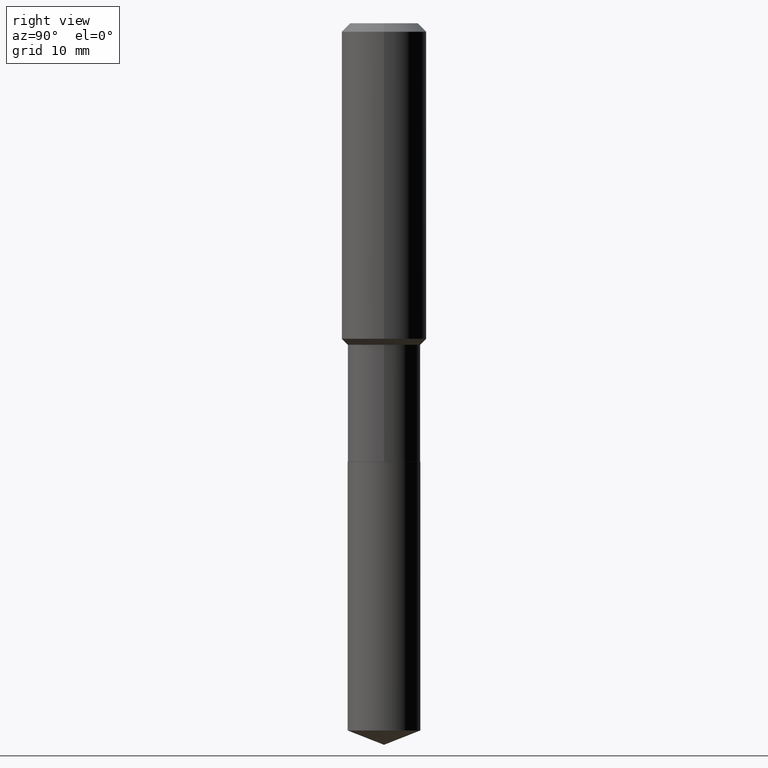
[diagram: clean part render]
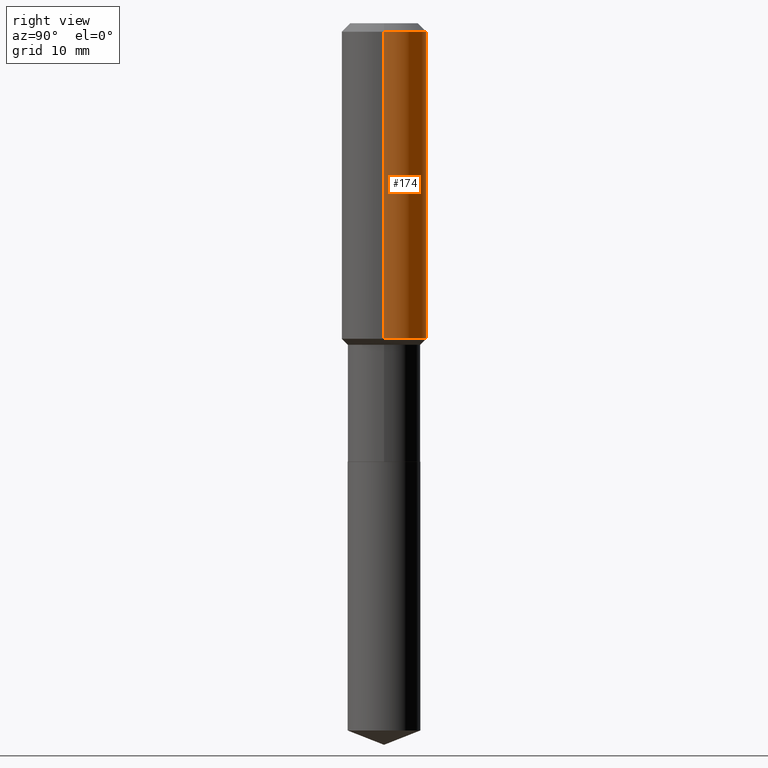
[diagram: same view with one face highlighted and labeled with its STEP entity id]
A machine part, right view. The second image highlights one B-rep face of the part: STEP entity #174.
In plain terms, the highlighted cylindrical surface (partial cylindrical patch) has radius 5.9995 mm, axis along (-0, 0, 1).
Its self-contained STEP definition (entity closure, byte-faithful):
#11 = DIRECTION ( 'NONE',  ( -2.445468806185136597E-29, 3.491481338843145583E-15, 1.000000000000000000 ) ) ;
#29 = CARTESIAN_POINT ( 'NONE',  ( 0.2362000000000001043, -1.649375784469496920E-15, 1.151752954443000508E-29 ) ) ;
#40 = CIRCLE ( 'NONE', #289, 0.2361999999999999933 ) ;
#43 = VERTEX_POINT ( 'NONE', #134 ) ;
#52 = ORIENTED_EDGE ( 'NONE', *, *, #222, .F. ) ;
#68 = DIRECTION ( 'NONE',  ( -2.445468806185136877E-29, 3.491481338843145188E-15, 1.000000000000000000 ) ) ;
#75 = CARTESIAN_POINT ( 'NONE',  ( -0.2362000000000001043, 1.678301941865357380E-15, -1.161852468318209317E-29 ) ) ;
#84 = DIRECTION ( 'NONE',  ( 1.000000000000000000, -6.982962677686266711E-15, 0.000000000000000000 ) ) ;
#92 = AXIS2_PLACEMENT_3D ( 'NONE', #257, #11, #84 ) ;
#115 = ORIENTED_EDGE ( 'NONE', *, *, #182, .F. ) ;
#131 = AXIS2_PLACEMENT_3D ( 'NONE', #320, #282, #445 ) ;
#134 = CARTESIAN_POINT ( 'NONE',  ( 0.2362000000000002153, -7.780591589545004150E-15, -1.756049999999999889 ) ) ;
#143 = LINE ( 'NONE', #75, #162 ) ;
#153 = VERTEX_POINT ( 'NONE', #317 ) ;
#162 = VECTOR ( 'NONE', #68, 39.37007874015748143 ) ;
#174 = ADVANCED_FACE ( 'NONE', ( #270 ), #433, .T. ) ;
#178 = CARTESIAN_POINT ( 'NONE',  ( 1.155239464041865506E-30, -1.649375784469511859E-16, -0.04724000000000028177 ) ) ;
#182 = EDGE_CURVE ( 'NONE', #43, #224, #212, .T. ) ;
#198 = ORIENTED_EDGE ( 'NONE', *, *, #359, .T. ) ;
#212 = LINE ( 'NONE', #29, #427 ) ;
#222 = EDGE_CURVE ( 'NONE', #224, #262, #40, .T. ) ;
#224 = VERTEX_POINT ( 'NONE', #368 ) ;
#240 = DIRECTION ( 'NONE',  ( -2.445468806185136877E-29, 3.491481338843145188E-15, 1.000000000000000000 ) ) ;
#257 = CARTESIAN_POINT ( 'NONE',  ( 4.294365497101408691E-29, -6.131215805075506047E-15, -1.756049999999999889 ) ) ;
#262 = VERTEX_POINT ( 'NONE', #410 ) ;
#267 = EDGE_CURVE ( 'NONE', #153, #262, #143, .T. ) ;
#270 = FACE_OUTER_BOUND ( 'NONE', #338, .T. ) ;
#282 = DIRECTION ( 'NONE',  ( -2.445468806185136597E-29, 3.491481338843145583E-15, 1.000000000000000000 ) ) ;
#289 = AXIS2_PLACEMENT_3D ( 'NONE', #178, #324, #408 ) ;
#317 = CARTESIAN_POINT ( 'NONE',  ( -0.2362000000000002153, -4.452913863210148076E-15, -1.756049999999999889 ) ) ;
#320 = CARTESIAN_POINT ( 'NONE',  ( 0.000000000000000000, 0.000000000000000000, 0.000000000000000000 ) ) ;
#324 = DIRECTION ( 'NONE',  ( -2.445468806185136597E-29, 3.491481338843145583E-15, 1.000000000000000000 ) ) ;
#328 = ORIENTED_EDGE ( 'NONE', *, *, #267, .T. ) ;
#338 = EDGE_LOOP ( 'NONE', ( #198, #328, #52, #115 ) ) ;
#339 = CIRCLE ( 'NONE', #92, 0.2362000000000002153 ) ;
#359 = EDGE_CURVE ( 'NONE', #43, #153, #339, .T. ) ;
#368 = CARTESIAN_POINT ( 'NONE',  ( 0.2361999999999999933, -1.814313362916447440E-15, -0.04724000000000028177 ) ) ;
#408 = DIRECTION ( 'NONE',  ( 1.000000000000000000, -6.982962677686266711E-15, 0.000000000000000000 ) ) ;
#410 = CARTESIAN_POINT ( 'NONE',  ( -0.2361999999999999933, -1.469774749895871101E-15, -0.04724000000000028177 ) ) ;
#427 = VECTOR ( 'NONE', #240, 39.37007874015748143 ) ;
#433 = CYLINDRICAL_SURFACE ( 'NONE', #131, 0.2362000000000001043 ) ;
#445 = DIRECTION ( 'NONE',  ( 1.000000000000000000, -6.982962677686266711E-15, 4.876176775795935793E-29 ) ) ;